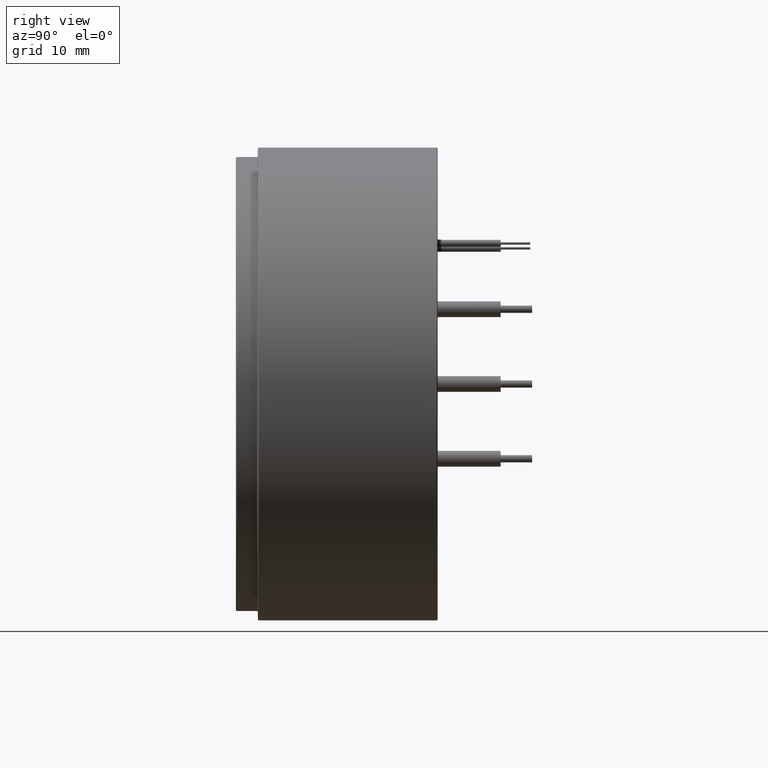
[diagram: clean part render]
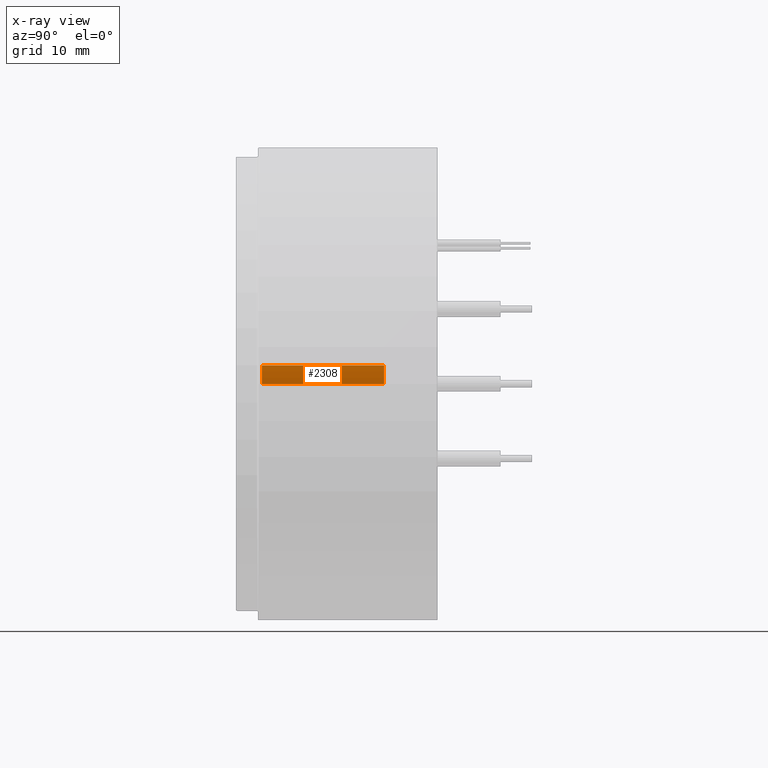
[diagram: x-ray — body ghosted, one internal face saturated and labeled with its STEP entity id]
A machine part, right view, then the same camera in x-ray: the body is ghosted and one INTERNAL B-rep face — a face not visible from any outside direction — is saturated and labeled: STEP entity #2308.
In plain terms, the highlighted cylindrical surface (partial cylindrical patch) has radius 25 mm, axis along (0, -1, -0).
Its self-contained STEP definition (entity closure, byte-faithful):
#44 = LINE ( 'NONE', #3019, #886 ) ;
#162 = VECTOR ( 'NONE', #2855, 1000.000000000000000 ) ;
#177 = CARTESIAN_POINT ( 'NONE',  ( 0.0000000000000000000, 0.3000000000000016500, 0.0000000000000000000 ) ) ;
#223 = VERTEX_POINT ( 'NONE', #2012 ) ;
#268 = ORIENTED_EDGE ( 'NONE', *, *, #2617, .T. ) ;
#507 = CARTESIAN_POINT ( 'NONE',  ( 0.0000000000000000000, 20.00000000000000000, -24.99999999999999600 ) ) ;
#517 = CARTESIAN_POINT ( 'NONE',  ( 0.0000000000000000000, 19.69999999999999900, -24.99999999999999600 ) ) ;
#538 = CARTESIAN_POINT ( 'NONE',  ( 0.0000000000000000000, 0.3000000000000016500, -24.99999999999999600 ) ) ;
#542 = EDGE_CURVE ( 'NONE', #1144, #223, #44, .T. ) ;
#662 = DIRECTION ( 'NONE',  ( 0.0000000000000000000, 1.000000000000000000, 0.0000000000000000000 ) ) ;
#744 = CYLINDRICAL_SURFACE ( 'NONE', #2966, 24.99999999999999600 ) ;
#827 = VERTEX_POINT ( 'NONE', #517 ) ;
#838 = CARTESIAN_POINT ( 'NONE',  ( 0.0000000000000000000, 20.00000000000000000, 0.0000000000000000000 ) ) ;
#886 = VECTOR ( 'NONE', #2731, 1000.000000000000000 ) ;
#1000 = DIRECTION ( 'NONE',  ( -0.0000000000000000000, -1.000000000000000000, -0.0000000000000000000 ) ) ;
#1108 = AXIS2_PLACEMENT_3D ( 'NONE', #2268, #1000, #3050 ) ;
#1144 = VERTEX_POINT ( 'NONE', #2192 ) ;
#1323 = ORIENTED_EDGE ( 'NONE', *, *, #542, .T. ) ;
#1475 = CIRCLE ( 'NONE', #1108, 24.99999999999999600 ) ;
#1536 = ORIENTED_EDGE ( 'NONE', *, *, #2120, .F. ) ;
#1649 = CIRCLE ( 'NONE', #3236, 24.99999999999999600 ) ;
#1666 = EDGE_LOOP ( 'NONE', ( #1536, #268, #1323, #2271 ) ) ;
#1853 = LINE ( 'NONE', #507, #162 ) ;
#2012 = CARTESIAN_POINT ( 'NONE',  ( 2.961868097062141400, 0.3000000000000016500, -24.82392671145331800 ) ) ;
#2120 = EDGE_CURVE ( 'NONE', #827, #2876, #1853, .T. ) ;
#2192 = CARTESIAN_POINT ( 'NONE',  ( 2.961868097062141400, 19.69999999999999900, -24.82392671145331800 ) ) ;
#2268 = CARTESIAN_POINT ( 'NONE',  ( 0.0000000000000000000, 19.69999999999999900, 0.0000000000000000000 ) ) ;
#2271 = ORIENTED_EDGE ( 'NONE', *, *, #3176, .T. ) ;
#2308 = ADVANCED_FACE ( 'NONE', ( #2691 ), #744, .T. ) ;
#2513 = DIRECTION ( 'NONE',  ( 0.0000000000000000000, 0.0000000000000000000, 1.000000000000000000 ) ) ;
#2617 = EDGE_CURVE ( 'NONE', #827, #1144, #1475, .T. ) ;
#2691 = FACE_OUTER_BOUND ( 'NONE', #1666, .T. ) ;
#2731 = DIRECTION ( 'NONE',  ( -0.0000000000000000000, -1.000000000000000000, -0.0000000000000000000 ) ) ;
#2855 = DIRECTION ( 'NONE',  ( -0.0000000000000000000, -1.000000000000000000, -0.0000000000000000000 ) ) ;
#2876 = VERTEX_POINT ( 'NONE', #538 ) ;
#2966 = AXIS2_PLACEMENT_3D ( 'NONE', #838, #3160, #3148 ) ;
#3019 = CARTESIAN_POINT ( 'NONE',  ( 2.961868097062141800, 20.00000000000000000, -24.82392671145331800 ) ) ;
#3050 = DIRECTION ( 'NONE',  ( 0.0000000000000000000, 0.0000000000000000000, 1.000000000000000000 ) ) ;
#3148 = DIRECTION ( 'NONE',  ( 0.0000000000000000000, 0.0000000000000000000, -1.000000000000000000 ) ) ;
#3160 = DIRECTION ( 'NONE',  ( -0.0000000000000000000, -1.000000000000000000, -0.0000000000000000000 ) ) ;
#3176 = EDGE_CURVE ( 'NONE', #223, #2876, #1649, .T. ) ;
#3236 = AXIS2_PLACEMENT_3D ( 'NONE', #177, #662, #2513 ) ;